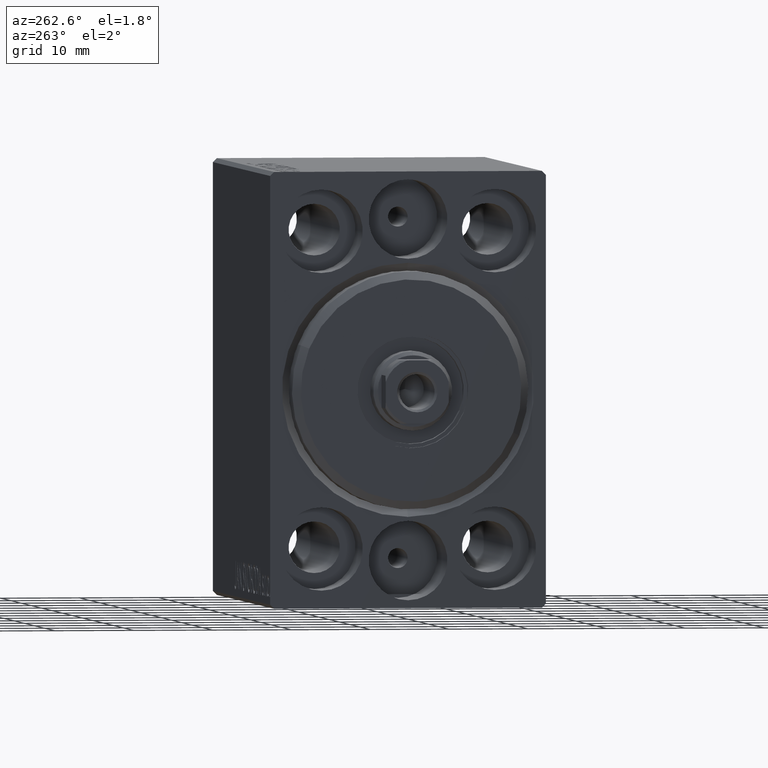
[diagram: clean part render]
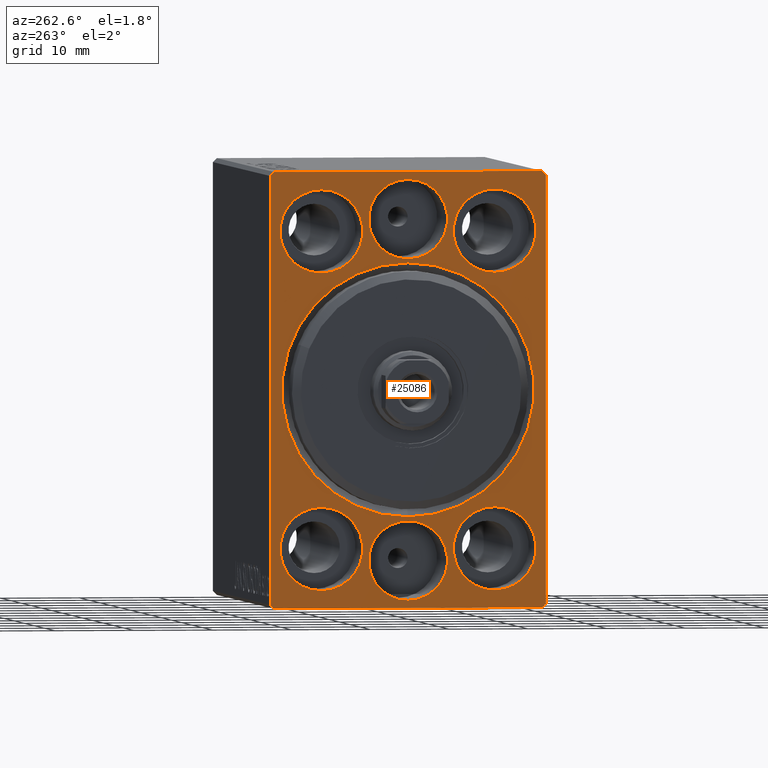
[diagram: same view with one face highlighted and labeled with its STEP entity id]
A machine part, auxiliary view. The second image highlights one B-rep face of the part: STEP entity #25086.
In plain terms, the highlighted planar face has unit normal (1, 0, 0).
Its self-contained STEP definition (entity closure, byte-faithful):
#5 = DIRECTION ( 'NONE',  ( -1.000000000000000000, 0.000000000000000000, 0.000000000000000000 ) ) ;
#145 = CARTESIAN_POINT ( 'NONE',  ( 0.000000000000000000, 11.00000000000000355, -20.00000000000000000 ) ) ;
#399 = ORIENTED_EDGE ( 'NONE', *, *, #32963, .F. ) ;
#515 = LINE ( 'NONE', #40623, #4097 ) ;
#526 = VERTEX_POINT ( 'NONE', #17016 ) ;
#658 = DIRECTION ( 'NONE',  ( 0.000000000000000000, 0.000000000000000000, -1.000000000000000000 ) ) ;
#719 = CARTESIAN_POINT ( 'NONE',  ( 0.000000000000000000, -1.224646799147353256E-15, 16.49999999999999645 ) ) ;
#892 = CARTESIAN_POINT ( 'NONE',  ( 0.000000000000000000, -1.836970198721029589E-15, 26.50000000000000000 ) ) ;
#1045 = ORIENTED_EDGE ( 'NONE', *, *, #42113, .F. ) ;
#1388 = ORIENTED_EDGE ( 'NONE', *, *, #14455, .T. ) ;
#1483 = VECTOR ( 'NONE', #29616, 1000.000000000000114 ) ;
#1665 = EDGE_CURVE ( 'NONE', #7781, #33483, #30266, .T. ) ;
#1954 = AXIS2_PLACEMENT_3D ( 'NONE', #29435, #26324, #32530 ) ;
#2080 = FACE_BOUND ( 'NONE', #32261, .T. ) ;
#2327 = CARTESIAN_POINT ( 'NONE',  ( 0.000000000000000000, -1.836970198721029589E-15, -21.50000000000000000 ) ) ;
#2470 = EDGE_LOOP ( 'NONE', ( #35757, #42380 ) ) ;
#2809 = CARTESIAN_POINT ( 'NONE',  ( 0.000000000000000000, -1.836970198721029589E-15, -21.50000000000000000 ) ) ;
#3031 = VERTEX_POINT ( 'NONE', #3157 ) ;
#3108 = DIRECTION ( 'NONE',  ( 0.000000000000000000, 0.000000000000000000, 1.000000000000000000 ) ) ;
#3157 = CARTESIAN_POINT ( 'NONE',  ( 0.000000000000000000, -11.00000000000000355, 25.25000000000000000 ) ) ;
#3343 = EDGE_CURVE ( 'NONE', #3031, #36667, #5534, .T. ) ;
#3516 = CARTESIAN_POINT ( 'NONE',  ( 0.000000000000000000, -1.836970198721029589E-15, -16.49999999999999645 ) ) ;
#4035 = CARTESIAN_POINT ( 'NONE',  ( 0.000000000000000000, 0.000000000000000000, 0.000000000000000000 ) ) ;
#4097 = VECTOR ( 'NONE', #37517, 1000.000000000000000 ) ;
#4452 = DIRECTION ( 'NONE',  ( 0.000000000000000000, 0.000000000000000000, 1.000000000000000000 ) ) ;
#4641 = DIRECTION ( 'NONE',  ( -1.000000000000000000, 0.000000000000000000, 0.000000000000000000 ) ) ;
#4759 = PLANE ( 'NONE',  #16220 ) ;
#5384 = DIRECTION ( 'NONE',  ( -1.000000000000000000, 0.000000000000000000, 0.000000000000000000 ) ) ;
#5410 = FACE_OUTER_BOUND ( 'NONE', #32598, .T. ) ;
#5534 = CIRCLE ( 'NONE', #18277, 5.250000000000000888 ) ;
#5607 = ORIENTED_EDGE ( 'NONE', *, *, #20656, .T. ) ;
#5905 = AXIS2_PLACEMENT_3D ( 'NONE', #19190, #4641, #24807 ) ;
#6102 = VERTEX_POINT ( 'NONE', #30918 ) ;
#6310 = CIRCLE ( 'NONE', #40966, 5.250000000000000888 ) ;
#6644 = EDGE_LOOP ( 'NONE', ( #10666, #17834 ) ) ;
#6777 = VERTEX_POINT ( 'NONE', #15234 ) ;
#6881 = CARTESIAN_POINT ( 'NONE',  ( 0.000000000000000000, 0.000000000000000000, 0.000000000000000000 ) ) ;
#6898 = VERTEX_POINT ( 'NONE', #22528 ) ;
#7322 = DIRECTION ( 'NONE',  ( 1.000000000000000000, 0.000000000000000000, 0.000000000000000000 ) ) ;
#7443 = EDGE_CURVE ( 'NONE', #21264, #19995, #515, .T. ) ;
#7605 = EDGE_CURVE ( 'NONE', #9846, #43739, #23918, .T. ) ;
#7781 = VERTEX_POINT ( 'NONE', #892 ) ;
#7805 = CARTESIAN_POINT ( 'NONE',  ( 0.000000000000000000, -16.99999999999999289, 27.49999999999999645 ) ) ;
#7878 = CIRCLE ( 'NONE', #38308, 5.250000000000000888 ) ;
#8042 = ORIENTED_EDGE ( 'NONE', *, *, #9792, .F. ) ;
#8688 = CARTESIAN_POINT ( 'NONE',  ( 0.000000000000000000, -17.50000000000000000, -26.99999999999999645 ) ) ;
#9430 = LINE ( 'NONE', #32927, #30555 ) ;
#9792 = EDGE_CURVE ( 'NONE', #33483, #7781, #13363, .T. ) ;
#9846 = VERTEX_POINT ( 'NONE', #27485 ) ;
#10592 = CIRCLE ( 'NONE', #17680, 16.00000000000001421 ) ;
#10666 = ORIENTED_EDGE ( 'NONE', *, *, #26854, .T. ) ;
#10831 = CARTESIAN_POINT ( 'NONE',  ( 0.000000000000000000, 11.00000000000000355, -25.25000000000000000 ) ) ;
#10868 = CARTESIAN_POINT ( 'NONE',  ( 0.000000000000000000, -16.99999999999999289, -27.50000000000000355 ) ) ;
#11011 = EDGE_CURVE ( 'NONE', #37963, #526, #6310, .T. ) ;
#11091 = CARTESIAN_POINT ( 'NONE',  ( 0.000000000000000000, 17.50000000000000711, -27.00000000000000355 ) ) ;
#11260 = ORIENTED_EDGE ( 'NONE', *, *, #1665, .F. ) ;
#11508 = AXIS2_PLACEMENT_3D ( 'NONE', #2327, #12296, #12506 ) ;
#11625 = CARTESIAN_POINT ( 'NONE',  ( 0.000000000000000000, 0.000000000000000000, 0.000000000000000000 ) ) ;
#11652 = EDGE_LOOP ( 'NONE', ( #35430, #1045 ) ) ;
#11742 = LINE ( 'NONE', #10868, #29965 ) ;
#12060 = AXIS2_PLACEMENT_3D ( 'NONE', #36287, #16752, #13013 ) ;
#12090 = VECTOR ( 'NONE', #17154, 1000.000000000000000 ) ;
#12296 = DIRECTION ( 'NONE',  ( -1.000000000000000000, 0.000000000000000000, 0.000000000000000000 ) ) ;
#12304 = EDGE_LOOP ( 'NONE', ( #29106, #25580 ) ) ;
#12486 = DIRECTION ( 'NONE',  ( 1.000000000000000000, 0.000000000000000000, 0.000000000000000000 ) ) ;
#12506 = DIRECTION ( 'NONE',  ( 0.000000000000000000, 0.000000000000000000, 1.000000000000000000 ) ) ;
#12540 = LINE ( 'NONE', #22742, #1483 ) ;
#12753 = DIRECTION ( 'NONE',  ( -0.000000000000000000, 0.7071067811865474617, -0.7071067811865474617 ) ) ;
#12772 = VECTOR ( 'NONE', #42089, 1000.000000000000000 ) ;
#13013 = DIRECTION ( 'NONE',  ( 0.000000000000000000, 0.000000000000000000, 1.000000000000000000 ) ) ;
#13188 = LINE ( 'NONE', #20266, #12090 ) ;
#13363 = CIRCLE ( 'NONE', #19723, 5.000000000000000888 ) ;
#13382 = EDGE_LOOP ( 'NONE', ( #21791, #22421 ) ) ;
#13734 = CARTESIAN_POINT ( 'NONE',  ( 0.000000000000000000, -11.00000000000000355, 20.00000000000000000 ) ) ;
#13931 = EDGE_CURVE ( 'NONE', #26833, #6777, #38330, .T. ) ;
#14455 = EDGE_CURVE ( 'NONE', #26833, #19995, #12540, .T. ) ;
#14645 = ORIENTED_EDGE ( 'NONE', *, *, #35916, .T. ) ;
#15028 = CARTESIAN_POINT ( 'NONE',  ( 0.000000000000000000, -16.99999999999999289, -27.50000000000000355 ) ) ;
#15234 = CARTESIAN_POINT ( 'NONE',  ( 0.000000000000000000, 17.50000000000000000, 26.99999999999999645 ) ) ;
#15593 = FACE_BOUND ( 'NONE', #6644, .T. ) ;
#15669 = AXIS2_PLACEMENT_3D ( 'NONE', #35386, #19198, #25417 ) ;
#16220 = AXIS2_PLACEMENT_3D ( 'NONE', #11625, #12486, #23710 ) ;
#16529 = CIRCLE ( 'NONE', #33531, 5.250000000000000888 ) ;
#16553 = VERTEX_POINT ( 'NONE', #22453 ) ;
#16721 = DIRECTION ( 'NONE',  ( 0.000000000000000000, 0.000000000000000000, 1.000000000000000000 ) ) ;
#16752 = DIRECTION ( 'NONE',  ( -1.000000000000000000, 0.000000000000000000, 0.000000000000000000 ) ) ;
#16818 = VERTEX_POINT ( 'NONE', #30362 ) ;
#17016 = CARTESIAN_POINT ( 'NONE',  ( 0.000000000000000000, 11.00000000000000355, 25.25000000000000000 ) ) ;
#17154 = DIRECTION ( 'NONE',  ( 0.000000000000000000, -1.000000000000000000, -1.982541115402065110E-16 ) ) ;
#17377 = EDGE_CURVE ( 'NONE', #28104, #21025, #36212, .T. ) ;
#17378 = DIRECTION ( 'NONE',  ( -1.000000000000000000, 0.000000000000000000, 0.000000000000000000 ) ) ;
#17680 = AXIS2_PLACEMENT_3D ( 'NONE', #6881, #7322, #37904 ) ;
#17773 = CIRCLE ( 'NONE', #30527, 16.00000000000001421 ) ;
#17834 = ORIENTED_EDGE ( 'NONE', *, *, #34419, .T. ) ;
#17863 = VECTOR ( 'NONE', #37577, 1000.000000000000114 ) ;
#18002 = DIRECTION ( 'NONE',  ( 0.000000000000000000, 0.000000000000000000, -1.000000000000000000 ) ) ;
#18277 = AXIS2_PLACEMENT_3D ( 'NONE', #13734, #5, #3108 ) ;
#18892 = DIRECTION ( 'NONE',  ( 0.000000000000000000, 0.000000000000000000, 1.000000000000000000 ) ) ;
#18897 = ORIENTED_EDGE ( 'NONE', *, *, #7443, .F. ) ;
#19145 = FACE_BOUND ( 'NONE', #11652, .T. ) ;
#19190 = CARTESIAN_POINT ( 'NONE',  ( 0.000000000000000000, -11.00000000000000355, -20.00000000000000000 ) ) ;
#19198 = DIRECTION ( 'NONE',  ( -1.000000000000000000, 0.000000000000000000, 0.000000000000000000 ) ) ;
#19645 = EDGE_CURVE ( 'NONE', #6102, #31515, #24249, .T. ) ;
#19723 = AXIS2_PLACEMENT_3D ( 'NONE', #34575, #34354, #4452 ) ;
#19995 = VERTEX_POINT ( 'NONE', #29523 ) ;
#20266 = CARTESIAN_POINT ( 'NONE',  ( 0.000000000000000000, 17.50000000000000000, 27.50000000000000355 ) ) ;
#20656 = EDGE_CURVE ( 'NONE', #9846, #34429, #26956, .T. ) ;
#20741 = DIRECTION ( 'NONE',  ( 0.000000000000000000, 0.000000000000000000, 1.000000000000000000 ) ) ;
#21025 = VERTEX_POINT ( 'NONE', #38791 ) ;
#21264 = VERTEX_POINT ( 'NONE', #15028 ) ;
#21791 = ORIENTED_EDGE ( 'NONE', *, *, #22916, .F. ) ;
#22421 = ORIENTED_EDGE ( 'NONE', *, *, #28417, .F. ) ;
#22453 = CARTESIAN_POINT ( 'NONE',  ( 0.000000000000000000, 16.99999999999999289, 27.50000000000000355 ) ) ;
#22528 = CARTESIAN_POINT ( 'NONE',  ( 0.000000000000000000, -11.00000000000000355, -14.75000000000000000 ) ) ;
#22742 = CARTESIAN_POINT ( 'NONE',  ( 0.000000000000000000, 17.50000000000000711, -27.00000000000000355 ) ) ;
#22828 = CARTESIAN_POINT ( 'NONE',  ( 0.000000000000000000, 0.000000000000000000, 16.00000000000001421 ) ) ;
#22916 = EDGE_CURVE ( 'NONE', #6898, #31458, #31383, .T. ) ;
#23127 = DIRECTION ( 'NONE',  ( -1.000000000000000000, 0.000000000000000000, 0.000000000000000000 ) ) ;
#23626 = DIRECTION ( 'NONE',  ( -1.000000000000000000, 0.000000000000000000, 0.000000000000000000 ) ) ;
#23710 = DIRECTION ( 'NONE',  ( 0.000000000000000000, 0.000000000000000000, -1.000000000000000000 ) ) ;
#23918 = LINE ( 'NONE', #41203, #36649 ) ;
#24039 = CIRCLE ( 'NONE', #26205, 5.000000000000000888 ) ;
#24249 = CIRCLE ( 'NONE', #11508, 5.000000000000000888 ) ;
#24690 = ORIENTED_EDGE ( 'NONE', *, *, #27312, .F. ) ;
#24807 = DIRECTION ( 'NONE',  ( 0.000000000000000000, 0.000000000000000000, 1.000000000000000000 ) ) ;
#25086 = ADVANCED_FACE ( 'NONE', ( #42190, #2080, #15593, #39307, #19145, #28903, #25588, #5410 ), #4759, .F. ) ;
#25266 = DIRECTION ( 'NONE',  ( -0.000000000000000000, -0.7071067811865474617, 0.7071067811865474617 ) ) ;
#25417 = DIRECTION ( 'NONE',  ( 0.000000000000000000, 0.000000000000000000, 1.000000000000000000 ) ) ;
#25483 = CIRCLE ( 'NONE', #41018, 5.250000000000000888 ) ;
#25580 = ORIENTED_EDGE ( 'NONE', *, *, #11011, .F. ) ;
#25588 = FACE_BOUND ( 'NONE', #13382, .T. ) ;
#26205 = AXIS2_PLACEMENT_3D ( 'NONE', #2809, #23626, #20741 ) ;
#26324 = DIRECTION ( 'NONE',  ( -1.000000000000000000, 0.000000000000000000, 0.000000000000000000 ) ) ;
#26833 = VERTEX_POINT ( 'NONE', #11091 ) ;
#26854 = EDGE_CURVE ( 'NONE', #31387, #16818, #10592, .T. ) ;
#26956 = LINE ( 'NONE', #27178, #17863 ) ;
#27178 = CARTESIAN_POINT ( 'NONE',  ( 0.000000000000000000, -17.50000000000000000, 26.99999999999998934 ) ) ;
#27252 = EDGE_CURVE ( 'NONE', #31515, #6102, #24039, .T. ) ;
#27312 = EDGE_CURVE ( 'NONE', #21025, #28104, #25483, .T. ) ;
#27485 = CARTESIAN_POINT ( 'NONE',  ( 0.000000000000000000, -17.50000000000000000, 26.99999999999998934 ) ) ;
#28104 = VERTEX_POINT ( 'NONE', #10831 ) ;
#28327 = ORIENTED_EDGE ( 'NONE', *, *, #41316, .T. ) ;
#28417 = EDGE_CURVE ( 'NONE', #31458, #6898, #31173, .T. ) ;
#28903 = FACE_BOUND ( 'NONE', #12304, .T. ) ;
#28963 = ORIENTED_EDGE ( 'NONE', *, *, #7605, .F. ) ;
#29106 = ORIENTED_EDGE ( 'NONE', *, *, #33998, .F. ) ;
#29417 = CARTESIAN_POINT ( 'NONE',  ( 0.000000000000000000, 11.00000000000000355, 14.75000000000000000 ) ) ;
#29435 = CARTESIAN_POINT ( 'NONE',  ( 0.000000000000000000, -1.836970198721029589E-15, 21.50000000000000000 ) ) ;
#29523 = CARTESIAN_POINT ( 'NONE',  ( 0.000000000000000000, 17.00000000000000711, -27.50000000000000355 ) ) ;
#29616 = DIRECTION ( 'NONE',  ( 0.000000000000000000, -0.7071067811865474617, -0.7071067811865474617 ) ) ;
#29965 = VECTOR ( 'NONE', #25266, 1000.000000000000114 ) ;
#30266 = CIRCLE ( 'NONE', #1954, 5.000000000000000888 ) ;
#30362 = CARTESIAN_POINT ( 'NONE',  ( 0.000000000000000000, 1.959434878635766709E-15, -16.00000000000001421 ) ) ;
#30404 = ORIENTED_EDGE ( 'NONE', *, *, #17377, .F. ) ;
#30443 = CARTESIAN_POINT ( 'NONE',  ( 0.000000000000000000, -11.00000000000000355, 20.00000000000000000 ) ) ;
#30527 = AXIS2_PLACEMENT_3D ( 'NONE', #4035, #41484, #18002 ) ;
#30555 = VECTOR ( 'NONE', #12753, 1000.000000000000114 ) ;
#30918 = CARTESIAN_POINT ( 'NONE',  ( 0.000000000000000000, -1.224646799147353256E-15, -26.50000000000000000 ) ) ;
#31168 = DIRECTION ( 'NONE',  ( 0.000000000000000000, 0.000000000000000000, 1.000000000000000000 ) ) ;
#31173 = CIRCLE ( 'NONE', #12060, 5.250000000000000888 ) ;
#31383 = CIRCLE ( 'NONE', #5905, 5.250000000000000888 ) ;
#31387 = VERTEX_POINT ( 'NONE', #22828 ) ;
#31458 = VERTEX_POINT ( 'NONE', #37864 ) ;
#31515 = VERTEX_POINT ( 'NONE', #3516 ) ;
#32261 = EDGE_LOOP ( 'NONE', ( #11260, #8042 ) ) ;
#32530 = DIRECTION ( 'NONE',  ( 0.000000000000000000, 0.000000000000000000, 1.000000000000000000 ) ) ;
#32598 = EDGE_LOOP ( 'NONE', ( #28963, #5607, #399, #14645, #34720, #1388, #18897, #28327 ) ) ;
#32927 = CARTESIAN_POINT ( 'NONE',  ( 0.000000000000000000, 16.99999999999999289, 27.50000000000000355 ) ) ;
#32963 = EDGE_CURVE ( 'NONE', #16553, #34429, #13188, .T. ) ;
#33483 = VERTEX_POINT ( 'NONE', #719 ) ;
#33531 = AXIS2_PLACEMENT_3D ( 'NONE', #30443, #23127, #36645 ) ;
#33998 = EDGE_CURVE ( 'NONE', #526, #37963, #7878, .T. ) ;
#34259 = DIRECTION ( 'NONE',  ( -1.000000000000000000, 0.000000000000000000, 0.000000000000000000 ) ) ;
#34354 = DIRECTION ( 'NONE',  ( -1.000000000000000000, 0.000000000000000000, 0.000000000000000000 ) ) ;
#34419 = EDGE_CURVE ( 'NONE', #16818, #31387, #17773, .T. ) ;
#34429 = VERTEX_POINT ( 'NONE', #7805 ) ;
#34575 = CARTESIAN_POINT ( 'NONE',  ( 0.000000000000000000, -1.836970198721029589E-15, 21.50000000000000000 ) ) ;
#34720 = ORIENTED_EDGE ( 'NONE', *, *, #13931, .F. ) ;
#35386 = CARTESIAN_POINT ( 'NONE',  ( 0.000000000000000000, 11.00000000000000355, -20.00000000000000000 ) ) ;
#35430 = ORIENTED_EDGE ( 'NONE', *, *, #3343, .F. ) ;
#35661 = CARTESIAN_POINT ( 'NONE',  ( 0.000000000000000000, 17.50000000000000711, -27.50000000000000355 ) ) ;
#35757 = ORIENTED_EDGE ( 'NONE', *, *, #27252, .F. ) ;
#35916 = EDGE_CURVE ( 'NONE', #16553, #6777, #9430, .T. ) ;
#36212 = CIRCLE ( 'NONE', #15669, 5.250000000000000888 ) ;
#36287 = CARTESIAN_POINT ( 'NONE',  ( 0.000000000000000000, -11.00000000000000355, -20.00000000000000000 ) ) ;
#36645 = DIRECTION ( 'NONE',  ( 0.000000000000000000, 0.000000000000000000, 1.000000000000000000 ) ) ;
#36649 = VECTOR ( 'NONE', #658, 1000.000000000000000 ) ;
#36667 = VERTEX_POINT ( 'NONE', #42457 ) ;
#37517 = DIRECTION ( 'NONE',  ( 0.000000000000000000, 1.000000000000000000, 0.000000000000000000 ) ) ;
#37577 = DIRECTION ( 'NONE',  ( -0.000000000000000000, 0.7071067811865474617, 0.7071067811865474617 ) ) ;
#37864 = CARTESIAN_POINT ( 'NONE',  ( 0.000000000000000000, -11.00000000000000355, -25.25000000000000000 ) ) ;
#37904 = DIRECTION ( 'NONE',  ( 0.000000000000000000, 0.000000000000000000, -1.000000000000000000 ) ) ;
#37963 = VERTEX_POINT ( 'NONE', #29417 ) ;
#38308 = AXIS2_PLACEMENT_3D ( 'NONE', #40868, #17378, #16721 ) ;
#38330 = LINE ( 'NONE', #35661, #12772 ) ;
#38791 = CARTESIAN_POINT ( 'NONE',  ( 0.000000000000000000, 11.00000000000000355, -14.75000000000000000 ) ) ;
#39307 = FACE_BOUND ( 'NONE', #42439, .T. ) ;
#40623 = CARTESIAN_POINT ( 'NONE',  ( 0.000000000000000000, -17.50000000000000000, -27.50000000000000355 ) ) ;
#40868 = CARTESIAN_POINT ( 'NONE',  ( 0.000000000000000000, 11.00000000000000355, 20.00000000000000000 ) ) ;
#40966 = AXIS2_PLACEMENT_3D ( 'NONE', #42376, #5384, #18892 ) ;
#41018 = AXIS2_PLACEMENT_3D ( 'NONE', #145, #34259, #31168 ) ;
#41203 = CARTESIAN_POINT ( 'NONE',  ( 0.000000000000000000, -17.50000000000000000, 27.49999999999999645 ) ) ;
#41316 = EDGE_CURVE ( 'NONE', #21264, #43739, #11742, .T. ) ;
#41484 = DIRECTION ( 'NONE',  ( 1.000000000000000000, 0.000000000000000000, 0.000000000000000000 ) ) ;
#42089 = DIRECTION ( 'NONE',  ( 0.000000000000000000, -1.261617073437677752E-16, 1.000000000000000000 ) ) ;
#42113 = EDGE_CURVE ( 'NONE', #36667, #3031, #16529, .T. ) ;
#42190 = FACE_BOUND ( 'NONE', #2470, .T. ) ;
#42376 = CARTESIAN_POINT ( 'NONE',  ( 0.000000000000000000, 11.00000000000000355, 20.00000000000000000 ) ) ;
#42380 = ORIENTED_EDGE ( 'NONE', *, *, #19645, .F. ) ;
#42439 = EDGE_LOOP ( 'NONE', ( #24690, #30404 ) ) ;
#42457 = CARTESIAN_POINT ( 'NONE',  ( 0.000000000000000000, -11.00000000000000355, 14.75000000000000000 ) ) ;
#43739 = VERTEX_POINT ( 'NONE', #8688 ) ;